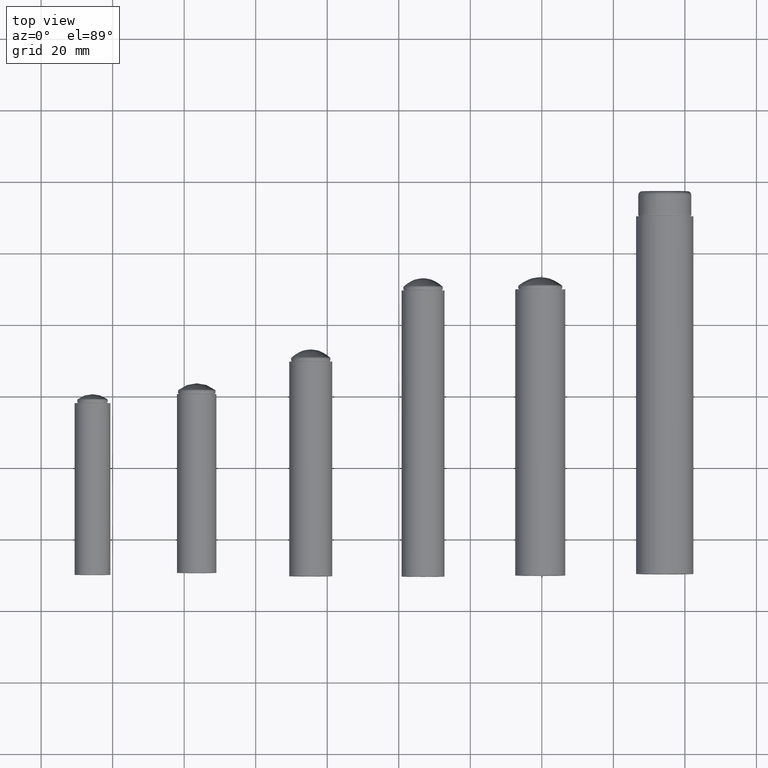
[diagram: clean part render]
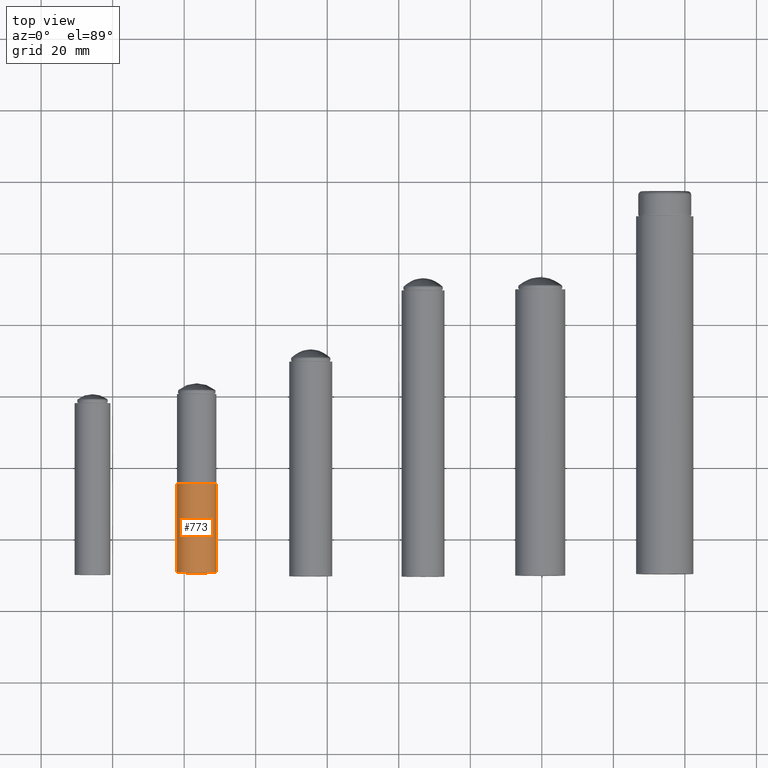
[diagram: same view with one face highlighted and labeled with its STEP entity id]
A machine part, top view. The second image highlights one B-rep face of the part: STEP entity #773.
In plain terms, the highlighted cylindrical surface (bore or boss wall) has radius 5.5 mm, axis along (-0, 1, -0).
Its self-contained STEP definition (entity closure, byte-faithful):
#207=FACE_BOUND('',#340,.T.);
#263=FACE_OUTER_BOUND('',#339,.T.);
#339=EDGE_LOOP('',(#639));
#340=EDGE_LOOP('',(#640));
#449=CIRCLE('',#871,5.5);
#450=CIRCLE('',#872,5.5);
#509=VERTEX_POINT('',#1390);
#510=VERTEX_POINT('',#1392);
#569=EDGE_CURVE('',#509,#509,#449,.T.);
#570=EDGE_CURVE('',#510,#510,#450,.T.);
#639=ORIENTED_EDGE('',*,*,#569,.F.);
#640=ORIENTED_EDGE('',*,*,#570,.F.);
#742=CYLINDRICAL_SURFACE('',#870,5.5);
#773=ADVANCED_FACE('',(#263,#207),#742,.T.);
#870=AXIS2_PLACEMENT_3D('',#1389,#1070,#1071);
#871=AXIS2_PLACEMENT_3D('',#1391,#1072,#1073);
#872=AXIS2_PLACEMENT_3D('',#1393,#1074,#1075);
#1070=DIRECTION('center_axis',(0.,0.,1.));
#1071=DIRECTION('ref_axis',(-1.,0.,0.));
#1072=DIRECTION('center_axis',(0.,0.,1.));
#1073=DIRECTION('ref_axis',(-1.,0.,0.));
#1074=DIRECTION('center_axis',(0.,0.,-1.));
#1075=DIRECTION('ref_axis',(-1.,0.,0.));
#1389=CARTESIAN_POINT('Origin',(0.,0.,0.));
#1390=CARTESIAN_POINT('',(5.5,6.73555739531044E-16,25.));
#1391=CARTESIAN_POINT('Origin',(0.,0.,25.));
#1392=CARTESIAN_POINT('',(5.5,6.73555739531044E-16,0.));
#1393=CARTESIAN_POINT('Origin',(0.,0.,0.));